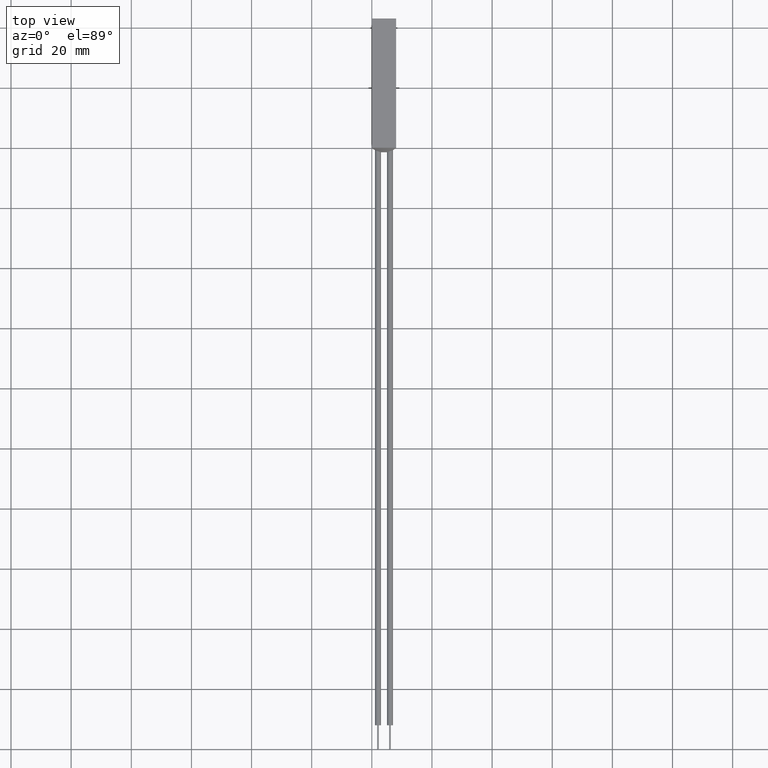
[diagram: clean part render]
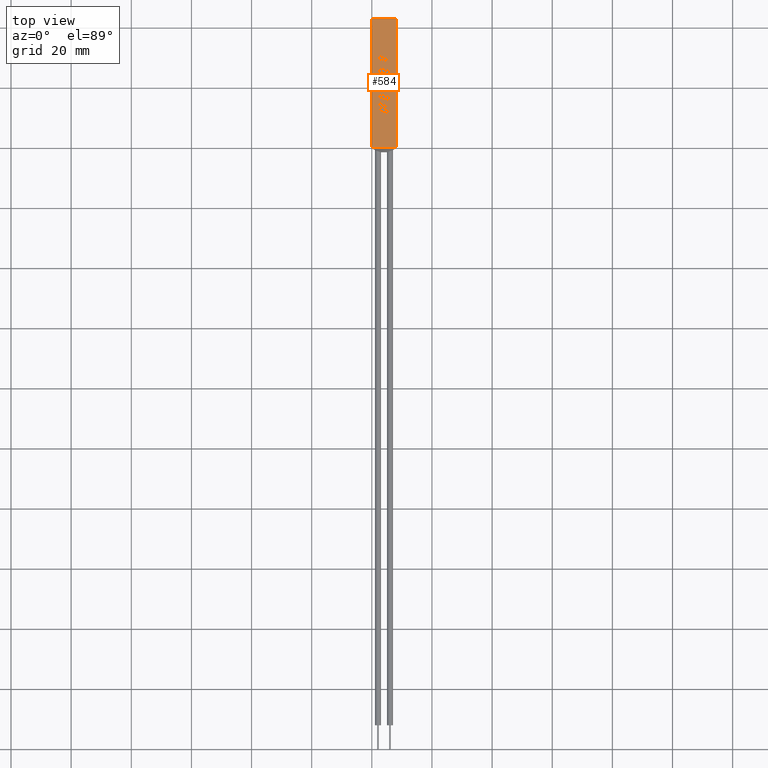
[diagram: same view with one face highlighted and labeled with its STEP entity id]
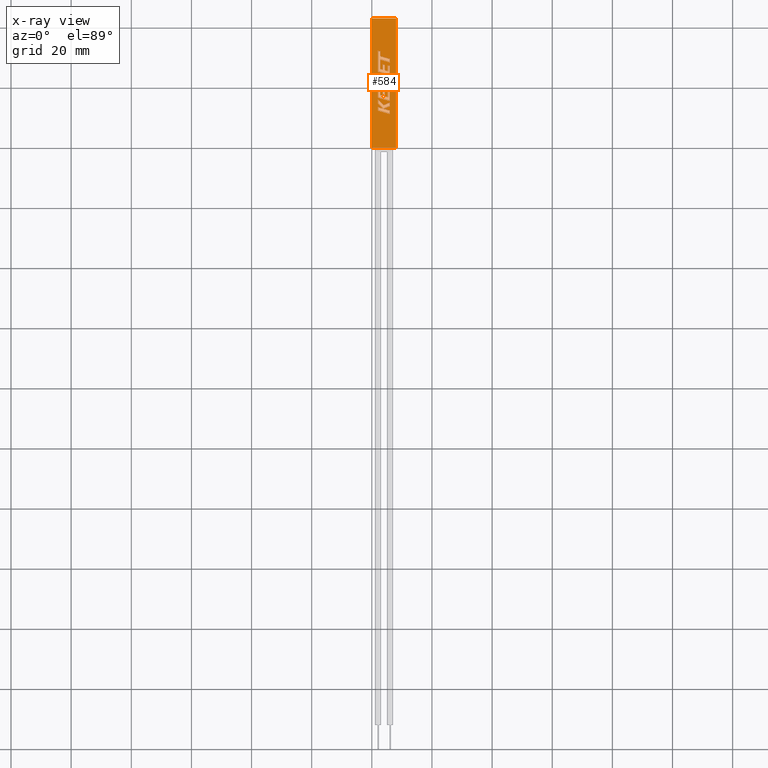
[diagram: x-ray of the same camera — body ghosted, the highlighted face saturated]
A machine part, top view. The second image highlights one B-rep face of the part: STEP entity #584.
The next image is the same camera in x-ray: the body ghosted, the highlighted face saturated — about 0% of this face is hidden behind the body in this view.
In plain terms, the highlighted planar face has unit normal (0, 0, -1).
Its self-contained STEP definition (entity closure, byte-faithful):
#4 = CARTESIAN_POINT ( 'NONE',  ( 0.0000000000000000000, 0.0000000000000000000, 8.099999999999999600 ) ) ;
#8 = VECTOR ( 'NONE', #1587, 1000.000000000000000 ) ;
#22 = CARTESIAN_POINT ( 'NONE',  ( 5.298211640257044100, 16.90319516898585000, 8.099999999999999600 ) ) ;
#31 = CARTESIAN_POINT ( 'NONE',  ( 6.065359624523209100, 13.85877490529176500, 8.099999999999999600 ) ) ;
#32 = CARTESIAN_POINT ( 'NONE',  ( 3.550727735831612700, 27.75770772029688200, 8.099999999999999600 ) ) ;
#34 = LINE ( 'NONE', #1168, #825 ) ;
#36 = CARTESIAN_POINT ( 'NONE',  ( 2.033057189502820400, 21.79422283212744900, 8.099999999999999600 ) ) ;
#38 = DIRECTION ( 'NONE',  ( 0.9610348236706637300, -0.2764273280489760700, 0.0000000000000000000 ) ) ;
#42 = VECTOR ( 'NONE', #1274, 1000.000000000000000 ) ;
#56 = LINE ( 'NONE', #2128, #2182 ) ;
#58 = ORIENTED_EDGE ( 'NONE', *, *, #77, .F. ) ;
#62 = ORIENTED_EDGE ( 'NONE', *, *, #335, .F. ) ;
#66 = EDGE_CURVE ( 'NONE', #1820, #387, #966, .T. ) ;
#67 = ORIENTED_EDGE ( 'NONE', *, *, #718, .T. ) ;
#73 = VECTOR ( 'NONE', #1568, 1000.000000000000100 ) ;
#76 = LINE ( 'NONE', #124, #991 ) ;
#77 = EDGE_CURVE ( 'NONE', #89, #2466, #1530, .T. ) ;
#80 = VECTOR ( 'NONE', #2120, 1000.000000000000000 ) ;
#81 = CARTESIAN_POINT ( 'NONE',  ( 2.033057189502820900, 12.36462026173734300, 8.099999999999999600 ) ) ;
#83 = EDGE_CURVE ( 'NONE', #1717, #1332, #843, .T. ) ;
#89 = VERTEX_POINT ( 'NONE', #2172 ) ;
#92 = ORIENTED_EDGE ( 'NONE', *, *, #1399, .F. ) ;
#99 = CARTESIAN_POINT ( 'NONE',  ( 6.065359624523210900, 27.20892166027618200, 8.099999999999999600 ) ) ;
#102 = ORIENTED_EDGE ( 'NONE', *, *, #1588, .F. ) ;
#104 = CARTESIAN_POINT ( 'NONE',  ( 3.550727735831612700, 26.02726609967319900, 8.099999999999999600 ) ) ;
#105 = CARTESIAN_POINT ( 'NONE',  ( 4.296027267031489800, 25.81459311046148700, 8.099999999999999600 ) ) ;
#106 = DIRECTION ( 'NONE',  ( -0.9610992334305247200, 0.2762033010288939500, 0.0000000000000000000 ) ) ;
#120 = DIRECTION ( 'NONE',  ( 0.0000000000000000000, 1.000000000000000000, 0.0000000000000000000 ) ) ;
#124 = CARTESIAN_POINT ( 'NONE',  ( 2.811619825730830700, 29.31919777909955000, 8.099999999999999600 ) ) ;
#142 = VECTOR ( 'NONE', #2191, 1000.000000000000000 ) ;
#143 = FACE_BOUND ( 'NONE', #1692, .T. ) ;
#145 = LINE ( 'NONE', #1252, #1681 ) ;
#146 = LINE ( 'NONE', #1882, #2363 ) ;
#156 = DIRECTION ( 'NONE',  ( 0.9610029908221278100, -0.2765379750249957200, 0.0000000000000000000 ) ) ;
#167 = CARTESIAN_POINT ( 'NONE',  ( 2.033057189502821300, 16.69588007765661100, 8.099999999999999600 ) ) ;
#169 = EDGE_CURVE ( 'NONE', #244, #89, #2358, .T. ) ;
#170 = DIRECTION ( 'NONE',  ( 0.0000000000000000000, 0.0000000000000000000, -1.000000000000000000 ) ) ;
#174 = VERTEX_POINT ( 'NONE', #32 ) ;
#175 = ORIENTED_EDGE ( 'NONE', *, *, #1051, .F. ) ;
#178 = ORIENTED_EDGE ( 'NONE', *, *, #2179, .F. ) ;
#182 = ORIENTED_EDGE ( 'NONE', *, *, #1809, .F. ) ;
#187 = VERTEX_POINT ( 'NONE', #1800 ) ;
#189 = EDGE_CURVE ( 'NONE', #576, #603, #507, .T. ) ;
#190 = VECTOR ( 'NONE', #2050, 1000.000000000000000 ) ;
#204 = ORIENTED_EDGE ( 'NONE', *, *, #670, .F. ) ;
#216 = DIRECTION ( 'NONE',  ( 0.9280290862136603100, 0.3725077383645050100, -0.0000000000000000000 ) ) ;
#217 = ORIENTED_EDGE ( 'NONE', *, *, #2245, .F. ) ;
#231 = CARTESIAN_POINT ( 'NONE',  ( 3.875928840742625300, 12.97994478920210600, 8.099999999999999600 ) ) ;
#240 = CARTESIAN_POINT ( 'NONE',  ( 6.065359624523209100, 13.85877490529176500, 8.099999999999999600 ) ) ;
#244 = VERTEX_POINT ( 'NONE', #1048 ) ;
#249 = VERTEX_POINT ( 'NONE', #2414 ) ;
#258 = DIRECTION ( 'NONE',  ( -0.9620200793798853200, 0.2729786930694760900, 0.0000000000000000000 ) ) ;
#261 = LINE ( 'NONE', #1821, #2022 ) ;
#287 = EDGE_CURVE ( 'NONE', #2225, #1281, #261, .T. ) ;
#289 = CARTESIAN_POINT ( 'NONE',  ( 5.298064512637449900, 27.42664603145166400, 8.099999999999999600 ) ) ;
#292 = LINE ( 'NONE', #630, #1737 ) ;
#295 = DIRECTION ( 'NONE',  ( -0.9610674221107088400, 0.2763139702539063600, 0.0000000000000000000 ) ) ;
#298 = VERTEX_POINT ( 'NONE', #1623 ) ;
#299 = ORIENTED_EDGE ( 'NONE', *, *, #502, .F. ) ;
#321 = DIRECTION ( 'NONE',  ( 1.448785531673494400E-016, -1.000000000000000000, 0.0000000000000000000 ) ) ;
#335 = EDGE_CURVE ( 'NONE', #1481, #1852, #1161, .T. ) ;
#353 = ORIENTED_EDGE ( 'NONE', *, *, #1736, .F. ) ;
#357 = ORIENTED_EDGE ( 'NONE', *, *, #1139, .F. ) ;
#379 = EDGE_CURVE ( 'NONE', #1969, #244, #1619, .T. ) ;
#387 = VERTEX_POINT ( 'NONE', #1683 ) ;
#404 = CARTESIAN_POINT ( 'NONE',  ( 8.099999999999999600, 43.00000000000000000, 8.099999999999999600 ) ) ;
#405 = VECTOR ( 'NONE', #106, 1000.000000000000000 ) ;
#407 = VECTOR ( 'NONE', #857, 1000.000000000000100 ) ;
#413 = CARTESIAN_POINT ( 'NONE',  ( 0.0000000000000000000, 0.0000000000000000000, 8.099999999999999600 ) ) ;
#418 = ORIENTED_EDGE ( 'NONE', *, *, #83, .F. ) ;
#421 = CARTESIAN_POINT ( 'NONE',  ( 4.296027267022982900, 18.91921151950872100, 8.099999999999999600 ) ) ;
#423 = ORIENTED_EDGE ( 'NONE', *, *, #1594, .T. ) ;
#431 = VECTOR ( 'NONE', #156, 1000.000000000000200 ) ;
#433 = EDGE_CURVE ( 'NONE', #1092, #2282, #146, .T. ) ;
#435 = VECTOR ( 'NONE', #2410, 1000.000000000000100 ) ;
#449 = EDGE_CURVE ( 'NONE', #174, #2222, #1073, .T. ) ;
#457 = CARTESIAN_POINT ( 'NONE',  ( 2.805918630066817500, 28.09333036567217700, 8.099999999999999600 ) ) ;
#462 = VECTOR ( 'NONE', #2331, 1000.000000000000000 ) ;
#463 = DIRECTION ( 'NONE',  ( -0.9615323037684399000, 0.2746918797666879600, 0.0000000000000000000 ) ) ;
#464 = EDGE_CURVE ( 'NONE', #979, #2534, #1268, .T. ) ;
#466 = CARTESIAN_POINT ( 'NONE',  ( 2.033057189502820900, 13.51275524396518600, 8.099999999999999600 ) ) ;
#476 = CARTESIAN_POINT ( 'NONE',  ( 2.800585253472232400, 19.45681587965622900, 8.099999999999999600 ) ) ;
#485 = ORIENTED_EDGE ( 'NONE', *, *, #1641, .F. ) ;
#492 = AXIS2_PLACEMENT_3D ( 'NONE', #4, #170, #2552 ) ;
#500 = VECTOR ( 'NONE', #258, 1000.000000000000100 ) ;
#502 = EDGE_CURVE ( 'NONE', #2222, #1486, #56, .T. ) ;
#503 = VECTOR ( 'NONE', #2246, 1000.000000000000100 ) ;
#506 = VECTOR ( 'NONE', #915, 1000.000000000000100 ) ;
#507 = LINE ( 'NONE', #1019, #407 ) ;
#520 = VERTEX_POINT ( 'NONE', #1136 ) ;
#521 = EDGE_CURVE ( 'NONE', #603, #820, #2123, .T. ) ;
#527 = CARTESIAN_POINT ( 'NONE',  ( 6.065359624523210900, 22.65245252199492800, 8.099999999999999600 ) ) ;
#536 = EDGE_CURVE ( 'NONE', #1336, #2442, #2497, .T. ) ;
#544 = CARTESIAN_POINT ( 'NONE',  ( 3.550727735831612700, 27.75770772029688200, 8.099999999999999600 ) ) ;
#549 = DIRECTION ( 'NONE',  ( 0.0000000000000000000, -1.000000000000000000, 0.0000000000000000000 ) ) ;
#553 = EDGE_CURVE ( 'NONE', #1630, #638, #2247, .T. ) ;
#556 = CARTESIAN_POINT ( 'NONE',  ( 2.033057189502821300, 16.69588007765661100, 8.099999999999999600 ) ) ;
#564 = VECTOR ( 'NONE', #846, 1000.000000000000000 ) ;
#571 = VECTOR ( 'NONE', #1902, 1000.000000000000000 ) ;
#576 = VERTEX_POINT ( 'NONE', #1390 ) ;
#584 = ADVANCED_FACE ( 'NONE', ( #2119, #1132, #1582, #143 ), #2144, .F. ) ;
#595 = DIRECTION ( 'NONE',  ( 0.0000000000000000000, 1.000000000000000000, 0.0000000000000000000 ) ) ;
#603 = VERTEX_POINT ( 'NONE', #759 ) ;
#608 = VERTEX_POINT ( 'NONE', #950 ) ;
#614 = CARTESIAN_POINT ( 'NONE',  ( 5.298211640257044100, 16.90319516898584600, 8.099999999999999600 ) ) ;
#626 = VECTOR ( 'NONE', #2476, 1000.000000000000000 ) ;
#630 = CARTESIAN_POINT ( 'NONE',  ( 0.0000000000000000000, 0.0000000000000000000, 8.099999999999999600 ) ) ;
#634 = ORIENTED_EDGE ( 'NONE', *, *, #1629, .F. ) ;
#636 = ORIENTED_EDGE ( 'NONE', *, *, #913, .F. ) ;
#638 = VERTEX_POINT ( 'NONE', #2339 ) ;
#641 = VERTEX_POINT ( 'NONE', #1752 ) ;
#643 = LINE ( 'NONE', #421, #1514 ) ;
#649 = VECTOR ( 'NONE', #595, 1000.000000000000000 ) ;
#663 = EDGE_CURVE ( 'NONE', #2534, #641, #1867, .T. ) ;
#670 = EDGE_CURVE ( 'NONE', #2466, #2510, #808, .T. ) ;
#690 = DIRECTION ( 'NONE',  ( -0.0000000000000000000, 1.000000000000000000, -0.0000000000000000000 ) ) ;
#715 = CARTESIAN_POINT ( 'NONE',  ( 2.811746728228875300, 32.06607818268030000, 8.099999999999999600 ) ) ;
#718 = EDGE_CURVE ( 'NONE', #1452, #1336, #292, .T. ) ;
#720 = VECTOR ( 'NONE', #295, 1000.000000000000100 ) ;
#722 = CARTESIAN_POINT ( 'NONE',  ( 6.065359624523210900, 21.78408072827323800, 8.099999999999999600 ) ) ;
#726 = CARTESIAN_POINT ( 'NONE',  ( 2.800720120471082500, 26.24550541755443300, 8.099999999999999600 ) ) ;
#730 = DIRECTION ( 'NONE',  ( -0.9601763114346043600, 0.2793947940814888200, 0.0000000000000000000 ) ) ;
#731 = ORIENTED_EDGE ( 'NONE', *, *, #1342, .F. ) ;
#742 = CARTESIAN_POINT ( 'NONE',  ( 4.296027267031489800, 27.54478951836840000, 8.099999999999999600 ) ) ;
#744 = EDGE_CURVE ( 'NONE', #1309, #2402, #2428, .T. ) ;
#745 = CARTESIAN_POINT ( 'NONE',  ( 8.099999999999999600, 0.0000000000000000000, 8.099999999999999600 ) ) ;
#759 = CARTESIAN_POINT ( 'NONE',  ( 6.065359624523210900, 20.70910496007882500, 8.099999999999999600 ) ) ;
#763 = VECTOR ( 'NONE', #2373, 1000.000000000000200 ) ;
#765 = LINE ( 'NONE', #2453, #1570 ) ;
#774 = EDGE_CURVE ( 'NONE', #298, #979, #2527, .T. ) ;
#781 = VECTOR ( 'NONE', #946, 1000.000000000000100 ) ;
#795 = ORIENTED_EDGE ( 'NONE', *, *, #1345, .F. ) ;
#800 = VECTOR ( 'NONE', #1293, 1000.000000000000200 ) ;
#808 = LINE ( 'NONE', #240, #1928 ) ;
#809 = CARTESIAN_POINT ( 'NONE',  ( 2.800585253472232400, 17.61965768471606400, 8.099999999999999600 ) ) ;
#818 = DIRECTION ( 'NONE',  ( 0.004650693823643930000, 0.9999891854650022600, 0.0000000000000000000 ) ) ;
#820 = VERTEX_POINT ( 'NONE', #1066 ) ;
#825 = VECTOR ( 'NONE', #1771, 1000.000000000000100 ) ;
#835 = DIRECTION ( 'NONE',  ( 0.0000000000000000000, 1.000000000000000000, 0.0000000000000000000 ) ) ;
#843 = LINE ( 'NONE', #977, #1298 ) ;
#845 = DIRECTION ( 'NONE',  ( 0.0000000000000000000, 1.000000000000000000, 0.0000000000000000000 ) ) ;
#846 = DIRECTION ( 'NONE',  ( 0.9610853065513850200, -0.2762517575166362800, 0.0000000000000000000 ) ) ;
#857 = DIRECTION ( 'NONE',  ( 0.9984327301130273600, -0.05596501978063306300, 0.0000000000000000000 ) ) ;
#861 = LINE ( 'NONE', #1388, #8 ) ;
#875 = VERTEX_POINT ( 'NONE', #457 ) ;
#878 = EDGE_CURVE ( 'NONE', #1842, #1593, #145, .T. ) ;
#894 = VERTEX_POINT ( 'NONE', #1054 ) ;
#913 = EDGE_CURVE ( 'NONE', #894, #1961, #2523, .T. ) ;
#915 = DIRECTION ( 'NONE',  ( 7.938847108747661100E-005, 0.9999999968487352000, 0.0000000000000000000 ) ) ;
#918 = DIRECTION ( 'NONE',  ( -0.8843386665637784600, 0.4668459304954882300, 0.0000000000000000000 ) ) ;
#920 = DIRECTION ( 'NONE',  ( 0.0000000000000000000, 1.000000000000000000, 0.0000000000000000000 ) ) ;
#934 = VECTOR ( 'NONE', #1577, 1000.000000000000100 ) ;
#938 = ORIENTED_EDGE ( 'NONE', *, *, #2386, .F. ) ;
#939 = CARTESIAN_POINT ( 'NONE',  ( 2.033057189502820900, 14.73354675415738200, 8.099999999999999600 ) ) ;
#940 = ORIENTED_EDGE ( 'NONE', *, *, #553, .F. ) ;
#946 = DIRECTION ( 'NONE',  ( -0.9612934544747658800, 0.2755265765474743100, -0.0000000000000000000 ) ) ;
#949 = LINE ( 'NONE', #1016, #2163 ) ;
#950 = CARTESIAN_POINT ( 'NONE',  ( 2.811619825730831600, 29.31919777909955000, 8.099999999999999600 ) ) ;
#953 = CARTESIAN_POINT ( 'NONE',  ( 3.875928840742624000, 12.97994478920210600, 8.099999999999999600 ) ) ;
#957 = EDGE_CURVE ( 'NONE', #1266, #2134, #2244, .T. ) ;
#958 = LINE ( 'NONE', #1225, #1402 ) ;
#966 = LINE ( 'NONE', #1551, #2309 ) ;
#970 = ORIENTED_EDGE ( 'NONE', *, *, #1483, .F. ) ;
#977 = CARTESIAN_POINT ( 'NONE',  ( 6.065359624523210900, 22.65245252199492800, 8.099999999999999600 ) ) ;
#978 = VECTOR ( 'NONE', #2216, 1000.000000000000000 ) ;
#979 = VERTEX_POINT ( 'NONE', #1879 ) ;
#981 = CARTESIAN_POINT ( 'NONE',  ( 2.033057189502820900, 12.36462026173734300, 8.099999999999999600 ) ) ;
#982 = DIRECTION ( 'NONE',  ( 0.002813301675981434700, 0.9999960426590096500, 0.0000000000000000000 ) ) ;
#983 = VECTOR ( 'NONE', #463, 1000.000000000000200 ) ;
#989 = LINE ( 'NONE', #2536, #1430 ) ;
#990 = CARTESIAN_POINT ( 'NONE',  ( 6.065359624523209100, 12.35240866520725300, 8.099999999999999600 ) ) ;
#991 = VECTOR ( 'NONE', #1114, 999.9999999999998900 ) ;
#995 = EDGE_CURVE ( 'NONE', #2134, #2185, #1133, .T. ) ;
#997 = LINE ( 'NONE', #614, #142 ) ;
#1002 = VECTOR ( 'NONE', #2200, 1000.000000000000000 ) ;
#1007 = ORIENTED_EDGE ( 'NONE', *, *, #774, .F. ) ;
#1015 = CARTESIAN_POINT ( 'NONE',  ( 2.033057189502820000, 23.06789916026803400, 8.099999999999999600 ) ) ;
#1016 = CARTESIAN_POINT ( 'NONE',  ( 2.033057189502820000, 25.32223049979639700, 8.099999999999999600 ) ) ;
#1019 = CARTESIAN_POINT ( 'NONE',  ( 2.475506754911654700, 20.91032651542049300, 8.099999999999999600 ) ) ;
#1024 = VERTEX_POINT ( 'NONE', #1508 ) ;
#1027 = LINE ( 'NONE', #99, #500 ) ;
#1032 = VECTOR ( 'NONE', #982, 1000.000000000000100 ) ;
#1040 = ORIENTED_EDGE ( 'NONE', *, *, #2391, .F. ) ;
#1041 = CARTESIAN_POINT ( 'NONE',  ( 2.033057189502820900, 13.51275524396518600, 8.099999999999999600 ) ) ;
#1048 = CARTESIAN_POINT ( 'NONE',  ( 6.065359624523208200, 11.20580626569658200, 8.099999999999999600 ) ) ;
#1051 = EDGE_CURVE ( 'NONE', #1395, #1481, #2148, .T. ) ;
#1054 = CARTESIAN_POINT ( 'NONE',  ( 2.033057189502820900, 14.73354675415738100, 8.099999999999999600 ) ) ;
#1056 = CARTESIAN_POINT ( 'NONE',  ( 3.875928840742591600, 14.17813994754817800, 8.099999999999999600 ) ) ;
#1063 = CARTESIAN_POINT ( 'NONE',  ( 2.033057189502818700, 32.28986009155261900, 8.099999999999999600 ) ) ;
#1066 = CARTESIAN_POINT ( 'NONE',  ( 6.065359624523210900, 21.78408072827323800, 8.099999999999999600 ) ) ;
#1073 = LINE ( 'NONE', #544, #571 ) ;
#1076 = ORIENTED_EDGE ( 'NONE', *, *, #995, .F. ) ;
#1089 = EDGE_CURVE ( 'NONE', #1486, #875, #2094, .T. ) ;
#1092 = VERTEX_POINT ( 'NONE', #2518 ) ;
#1099 = LINE ( 'NONE', #1264, #42 ) ;
#1106 = VECTOR ( 'NONE', #1435, 1000.000000000000000 ) ;
#1114 = DIRECTION ( 'NONE',  ( 0.9610664548999052800, -0.2763173343569465000, 0.0000000000000000000 ) ) ;
#1125 = DIRECTION ( 'NONE',  ( -0.6995643972270443300, 0.7145695586381790600, -0.0000000000000000000 ) ) ;
#1128 = CARTESIAN_POINT ( 'NONE',  ( 4.913785857811077100, 21.63915201084902800, 8.099999999999999600 ) ) ;
#1132 = FACE_OUTER_BOUND ( 'NONE', #1881, .T. ) ;
#1133 = LINE ( 'NONE', #715, #405 ) ;
#1136 = CARTESIAN_POINT ( 'NONE',  ( 5.298064512637449900, 25.52852795513538100, 8.099999999999999600 ) ) ;
#1139 = EDGE_CURVE ( 'NONE', #2402, #2225, #997, .T. ) ;
#1151 = ORIENTED_EDGE ( 'NONE', *, *, #1972, .F. ) ;
#1153 = LINE ( 'NONE', #722, #2516 ) ;
#1154 = ORIENTED_EDGE ( 'NONE', *, *, #2533, .T. ) ;
#1159 = VECTOR ( 'NONE', #2257, 1000.000000000000100 ) ;
#1161 = LINE ( 'NONE', #1848, #626 ) ;
#1167 = VERTEX_POINT ( 'NONE', #1407 ) ;
#1168 = CARTESIAN_POINT ( 'NONE',  ( 6.065359624523210900, 19.87957486068575400, 8.099999999999999600 ) ) ;
#1187 = VECTOR ( 'NONE', #1460, 1000.000000000000100 ) ;
#1197 = DIRECTION ( 'NONE',  ( 0.0000000000000000000, 1.000000000000000000, 0.0000000000000000000 ) ) ;
#1206 = CARTESIAN_POINT ( 'NONE',  ( 2.800585253472232400, 17.61965768471606400, 8.099999999999999600 ) ) ;
#1214 = DIRECTION ( 'NONE',  ( 0.0000000000000000000, -1.000000000000000000, 0.0000000000000000000 ) ) ;
#1218 = LINE ( 'NONE', #167, #431 ) ;
#1221 = LINE ( 'NONE', #1886, #1924 ) ;
#1225 = CARTESIAN_POINT ( 'NONE',  ( 2.805918630066817500, 28.09333036567217700, 8.099999999999999600 ) ) ;
#1239 = EDGE_CURVE ( 'NONE', #1961, #2102, #1550, .T. ) ;
#1248 = ORIENTED_EDGE ( 'NONE', *, *, #1089, .F. ) ;
#1252 = CARTESIAN_POINT ( 'NONE',  ( 6.065359624523210900, 28.38371126481157000, 8.099999999999999600 ) ) ;
#1257 = VECTOR ( 'NONE', #2281, 1000.000000000000100 ) ;
#1259 = CARTESIAN_POINT ( 'NONE',  ( 2.811619825740878700, 30.46757797404221400, 8.099999999999999600 ) ) ;
#1262 = DIRECTION ( 'NONE',  ( 0.0000000000000000000, -1.000000000000000000, 0.0000000000000000000 ) ) ;
#1264 = CARTESIAN_POINT ( 'NONE',  ( 0.0000000000000000000, 43.00000000000000000, 8.099999999999999600 ) ) ;
#1266 = VERTEX_POINT ( 'NONE', #1259 ) ;
#1268 = LINE ( 'NONE', #1919, #1654 ) ;
#1270 = CARTESIAN_POINT ( 'NONE',  ( 4.296027267022982900, 17.18874537761344400, 8.099999999999999600 ) ) ;
#1274 = DIRECTION ( 'NONE',  ( -1.000000000000000000, -0.0000000000000000000, -0.0000000000000000000 ) ) ;
#1281 = VERTEX_POINT ( 'NONE', #2461 ) ;
#1293 = DIRECTION ( 'NONE',  ( -0.9610876102172822800, 0.2762437428917317000, 0.0000000000000000000 ) ) ;
#1297 = EDGE_CURVE ( 'NONE', #641, #249, #2302, .T. ) ;
#1298 = VECTOR ( 'NONE', #1197, 1000.000000000000000 ) ;
#1299 = CARTESIAN_POINT ( 'NONE',  ( 6.065359624523208200, 11.20580626569658200, 8.099999999999999600 ) ) ;
#1302 = ORIENTED_EDGE ( 'NONE', *, *, #1787, .F. ) ;
#1309 = VERTEX_POINT ( 'NONE', #1467 ) ;
#1332 = VERTEX_POINT ( 'NONE', #1506 ) ;
#1333 = DIRECTION ( 'NONE',  ( 0.0000000000000000000, 1.000000000000000000, 0.0000000000000000000 ) ) ;
#1336 = VERTEX_POINT ( 'NONE', #1484 ) ;
#1342 = EDGE_CURVE ( 'NONE', #2484, #1717, #1614, .T. ) ;
#1345 = EDGE_CURVE ( 'NONE', #1332, #1820, #2550, .T. ) ;
#1354 = CARTESIAN_POINT ( 'NONE',  ( 2.033057189502820000, 24.83643958346366500, 8.099999999999999600 ) ) ;
#1365 = ORIENTED_EDGE ( 'NONE', *, *, #287, .F. ) ;
#1367 = ORIENTED_EDGE ( 'NONE', *, *, #464, .F. ) ;
#1373 = EDGE_CURVE ( 'NONE', #187, #2338, #2487, .T. ) ;
#1388 = CARTESIAN_POINT ( 'NONE',  ( 2.033057189502820900, 19.67480998482584600, 8.099999999999999600 ) ) ;
#1390 = CARTESIAN_POINT ( 'NONE',  ( 2.475506754911654700, 20.91032651542049300, 8.099999999999999600 ) ) ;
#1395 = VERTEX_POINT ( 'NONE', #1128 ) ;
#1399 = EDGE_CURVE ( 'NONE', #2185, #1024, #1221, .T. ) ;
#1401 = CARTESIAN_POINT ( 'NONE',  ( 3.875928840742594700, 14.17813994754817800, 8.099999999999999600 ) ) ;
#1402 = VECTOR ( 'NONE', #818, 1000.000000000000200 ) ;
#1407 = CARTESIAN_POINT ( 'NONE',  ( 6.065359624523210900, 27.20892166027618200, 8.099999999999999600 ) ) ;
#1418 = ORIENTED_EDGE ( 'NONE', *, *, #2408, .F. ) ;
#1420 = CARTESIAN_POINT ( 'NONE',  ( 2.800720120471082500, 26.24550541755443300, 8.099999999999999600 ) ) ;
#1430 = VECTOR ( 'NONE', #549, 1000.000000000000000 ) ;
#1435 = DIRECTION ( 'NONE',  ( 0.0000000000000000000, 1.000000000000000000, 0.0000000000000000000 ) ) ;
#1452 = VERTEX_POINT ( 'NONE', #413 ) ;
#1460 = DIRECTION ( 'NONE',  ( -0.9612861490927325800, 0.2755520632520553900, -0.0000000000000000000 ) ) ;
#1463 = CARTESIAN_POINT ( 'NONE',  ( 2.033057189502820400, 20.07700788279051800, 8.099999999999999600 ) ) ;
#1467 = CARTESIAN_POINT ( 'NONE',  ( 5.298211640257044100, 19.13848073079321900, 8.099999999999999600 ) ) ;
#1468 = EDGE_CURVE ( 'NONE', #387, #1395, #1676, .T. ) ;
#1477 = CARTESIAN_POINT ( 'NONE',  ( 3.752586844215083600, 13.01985316207598800, 8.099999999999999600 ) ) ;
#1478 = CARTESIAN_POINT ( 'NONE',  ( 6.065359624523210900, 29.53236119374451000, 8.099999999999999600 ) ) ;
#1481 = VERTEX_POINT ( 'NONE', #36 ) ;
#1482 = CARTESIAN_POINT ( 'NONE',  ( 4.296027267031489800, 27.54478951836840000, 8.099999999999999600 ) ) ;
#1483 = EDGE_CURVE ( 'NONE', #875, #608, #958, .T. ) ;
#1484 = CARTESIAN_POINT ( 'NONE',  ( 8.099999999999999600, 0.0000000000000000000, 8.099999999999999600 ) ) ;
#1486 = VERTEX_POINT ( 'NONE', #1420 ) ;
#1492 = LINE ( 'NONE', #1463, #564 ) ;
#1495 = CARTESIAN_POINT ( 'NONE',  ( 6.065359624523210900, 23.67712290135410000, 8.099999999999999600 ) ) ;
#1506 = CARTESIAN_POINT ( 'NONE',  ( 6.065359624523210900, 23.67712290135410300, 8.099999999999999600 ) ) ;
#1508 = CARTESIAN_POINT ( 'NONE',  ( 2.033057189502819100, 25.32223049979639400, 8.099999999999999600 ) ) ;
#1511 = ORIENTED_EDGE ( 'NONE', *, *, #1989, .F. ) ;
#1514 = VECTOR ( 'NONE', #1808, 1000.000000000000000 ) ;
#1517 = LINE ( 'NONE', #1482, #983 ) ;
#1521 = ORIENTED_EDGE ( 'NONE', *, *, #744, .F. ) ;
#1523 = CARTESIAN_POINT ( 'NONE',  ( 6.065359624523210900, 20.70910496007882500, 8.099999999999999600 ) ) ;
#1530 = LINE ( 'NONE', #953, #781 ) ;
#1532 = VERTEX_POINT ( 'NONE', #289 ) ;
#1548 = LINE ( 'NONE', #1478, #800 ) ;
#1550 = LINE ( 'NONE', #466, #1187 ) ;
#1551 = CARTESIAN_POINT ( 'NONE',  ( 2.033057189502820000, 24.83643958346366500, 8.099999999999999600 ) ) ;
#1559 = EDGE_CURVE ( 'NONE', #2102, #1969, #2300, .T. ) ;
#1567 = ORIENTED_EDGE ( 'NONE', *, *, #66, .F. ) ;
#1568 = DIRECTION ( 'NONE',  ( -0.9615825319869246700, 0.2745159998572304100, 0.0000000000000000000 ) ) ;
#1570 = VECTOR ( 'NONE', #690, 1000.000000000000000 ) ;
#1577 = DIRECTION ( 'NONE',  ( -0.9985542843760947300, 0.05375259206908300500, 0.0000000000000000000 ) ) ;
#1582 = FACE_BOUND ( 'NONE', #1812, .T. ) ;
#1586 = VECTOR ( 'NONE', #1125, 1000.000000000000100 ) ;
#1587 = DIRECTION ( 'NONE',  ( 1.455827704943593700E-016, -1.000000000000000000, 0.0000000000000000000 ) ) ;
#1588 = EDGE_CURVE ( 'NONE', #1852, #1309, #1492, .T. ) ;
#1591 = DIRECTION ( 'NONE',  ( 1.000000000000000000, 0.0000000000000000000, 0.0000000000000000000 ) ) ;
#1592 = ORIENTED_EDGE ( 'NONE', *, *, #433, .F. ) ;
#1593 = VERTEX_POINT ( 'NONE', #1851 ) ;
#1594 = EDGE_CURVE ( 'NONE', #2442, #2043, #1099, .T. ) ;
#1609 = EDGE_CURVE ( 'NONE', #1593, #1266, #1548, .T. ) ;
#1614 = LINE ( 'NONE', #2289, #1257 ) ;
#1619 = LINE ( 'NONE', #1299, #2493 ) ;
#1623 = CARTESIAN_POINT ( 'NONE',  ( 3.550592868830611400, 19.13212972144191300, 8.099999999999999600 ) ) ;
#1627 = ORIENTED_EDGE ( 'NONE', *, *, #169, .F. ) ;
#1629 = EDGE_CURVE ( 'NONE', #1167, #1532, #1027, .T. ) ;
#1630 = VERTEX_POINT ( 'NONE', #1056 ) ;
#1641 = EDGE_CURVE ( 'NONE', #608, #1842, #76, .T. ) ;
#1654 = VECTOR ( 'NONE', #1925, 1000.000000000000100 ) ;
#1676 = LINE ( 'NONE', #1015, #435 ) ;
#1681 = VECTOR ( 'NONE', #845, 1000.000000000000000 ) ;
#1683 = CARTESIAN_POINT ( 'NONE',  ( 2.033057189502819100, 23.06789916026804100, 8.099999999999999600 ) ) ;
#1689 = CARTESIAN_POINT ( 'NONE',  ( 2.811619825740878700, 30.46757797404221400, 8.099999999999999600 ) ) ;
#1692 = EDGE_LOOP ( 'NONE', ( #1248, #299, #2350, #217, #2562, #2127, #182, #634, #1151, #1816, #92, #1076, #2037, #1756, #2344, #485, #970 ) ) ;
#1704 = LINE ( 'NONE', #1778, #649 ) ;
#1717 = VERTEX_POINT ( 'NONE', #527 ) ;
#1720 = ORIENTED_EDGE ( 'NONE', *, *, #1559, .F. ) ;
#1736 = EDGE_CURVE ( 'NONE', #820, #2484, #1153, .T. ) ;
#1737 = VECTOR ( 'NONE', #1591, 1000.000000000000000 ) ;
#1739 = CARTESIAN_POINT ( 'NONE',  ( 6.065359624523207300, 15.08567221213021100, 8.099999999999999600 ) ) ;
#1752 = CARTESIAN_POINT ( 'NONE',  ( 2.800585253472232400, 19.45681587965622600, 8.099999999999999600 ) ) ;
#1756 = ORIENTED_EDGE ( 'NONE', *, *, #1609, .F. ) ;
#1766 = EDGE_CURVE ( 'NONE', #638, #894, #1983, .T. ) ;
#1771 = DIRECTION ( 'NONE',  ( -0.9611638845409048400, 0.2759782365590409700, 0.0000000000000000000 ) ) ;
#1776 = ORIENTED_EDGE ( 'NONE', *, *, #189, .F. ) ;
#1778 = CARTESIAN_POINT ( 'NONE',  ( 6.065359624523210900, 24.16239886774302900, 8.099999999999999600 ) ) ;
#1787 = EDGE_CURVE ( 'NONE', #1846, #1092, #1218, .T. ) ;
#1800 = CARTESIAN_POINT ( 'NONE',  ( 4.296027267031489800, 25.81459311046148700, 8.099999999999999600 ) ) ;
#1806 = CARTESIAN_POINT ( 'NONE',  ( 5.298211640257044100, 19.13848073079321900, 8.099999999999999600 ) ) ;
#1808 = DIRECTION ( 'NONE',  ( -0.9615454294334508900, 0.2746459304916798500, 0.0000000000000000000 ) ) ;
#1809 = EDGE_CURVE ( 'NONE', #1532, #520, #989, .T. ) ;
#1812 = EDGE_LOOP ( 'NONE', ( #2286, #1720, #1813, #636, #2319, #940, #1040, #178, #204, #58, #1627 ) ) ;
#1813 = ORIENTED_EDGE ( 'NONE', *, *, #1239, .F. ) ;
#1815 = VERTEX_POINT ( 'NONE', #1739 ) ;
#1816 = ORIENTED_EDGE ( 'NONE', *, *, #2528, .F. ) ;
#1820 = VERTEX_POINT ( 'NONE', #1354 ) ;
#1821 = CARTESIAN_POINT ( 'NONE',  ( 4.296027267022982900, 17.18874537761344400, 8.099999999999999600 ) ) ;
#1836 = VECTOR ( 'NONE', #1333, 1000.000000000000000 ) ;
#1842 = VERTEX_POINT ( 'NONE', #2149 ) ;
#1846 = VERTEX_POINT ( 'NONE', #556 ) ;
#1848 = CARTESIAN_POINT ( 'NONE',  ( 2.033057189502820400, 21.79422283212744900, 8.099999999999999600 ) ) ;
#1851 = CARTESIAN_POINT ( 'NONE',  ( 6.065359624523210000, 29.53236119374451400, 8.099999999999999600 ) ) ;
#1852 = VERTEX_POINT ( 'NONE', #1935 ) ;
#1853 = LINE ( 'NONE', #2549, #73 ) ;
#1854 = DIRECTION ( 'NONE',  ( 0.9610992334315871000, -0.2762033010251969100, -0.0000000000000000000 ) ) ;
#1855 = EDGE_CURVE ( 'NONE', #520, #187, #1853, .T. ) ;
#1867 = LINE ( 'NONE', #1206, #1106 ) ;
#1875 = ORIENTED_EDGE ( 'NONE', *, *, #663, .F. ) ;
#1879 = CARTESIAN_POINT ( 'NONE',  ( 3.550592868830611400, 17.40141836683008200, 8.099999999999999600 ) ) ;
#1881 = EDGE_LOOP ( 'NONE', ( #1154, #67, #2152, #423 ) ) ;
#1882 = CARTESIAN_POINT ( 'NONE',  ( 6.065359624523210900, 19.16183723884537900, 8.099999999999999600 ) ) ;
#1886 = CARTESIAN_POINT ( 'NONE',  ( 2.033057189502819600, 28.31564021788804900, 8.099999999999999600 ) ) ;
#1902 = DIRECTION ( 'NONE',  ( 0.0000000000000000000, -1.000000000000000000, 0.0000000000000000000 ) ) ;
#1903 = VECTOR ( 'NONE', #1214, 1000.000000000000000 ) ;
#1919 = CARTESIAN_POINT ( 'NONE',  ( 3.550592868830611400, 17.40141836683007900, 8.099999999999999600 ) ) ;
#1922 = CARTESIAN_POINT ( 'NONE',  ( 4.913785857811078000, 21.63915201084902800, 8.099999999999999600 ) ) ;
#1924 = VECTOR ( 'NONE', #321, 1000.000000000000000 ) ;
#1925 = DIRECTION ( 'NONE',  ( -0.9601763114327569500, 0.2793947940878375700, 0.0000000000000000000 ) ) ;
#1928 = VECTOR ( 'NONE', #216, 1000.000000000000200 ) ;
#1935 = CARTESIAN_POINT ( 'NONE',  ( 2.033057189502820000, 20.07700788279051800, 8.099999999999999600 ) ) ;
#1949 = DIRECTION ( 'NONE',  ( 0.0000000000000000000, -1.000000000000000000, 0.0000000000000000000 ) ) ;
#1961 = VERTEX_POINT ( 'NONE', #2174 ) ;
#1969 = VERTEX_POINT ( 'NONE', #981 ) ;
#1972 = EDGE_CURVE ( 'NONE', #2062, #1167, #1704, .T. ) ;
#1977 = ORIENTED_EDGE ( 'NONE', *, *, #1297, .F. ) ;
#1983 = LINE ( 'NONE', #939, #462 ) ;
#1989 = EDGE_CURVE ( 'NONE', #249, #1846, #861, .T. ) ;
#1992 = CARTESIAN_POINT ( 'NONE',  ( 0.0000000000000000000, 0.0000000000000000000, 8.099999999999999600 ) ) ;
#2009 = LINE ( 'NONE', #1992, #978 ) ;
#2022 = VECTOR ( 'NONE', #835, 1000.000000000000000 ) ;
#2037 = ORIENTED_EDGE ( 'NONE', *, *, #957, .F. ) ;
#2043 = VERTEX_POINT ( 'NONE', #2436 ) ;
#2049 = CARTESIAN_POINT ( 'NONE',  ( 3.550592868830611400, 19.13212972144191300, 8.099999999999999600 ) ) ;
#2050 = DIRECTION ( 'NONE',  ( -0.0000000000000000000, -1.000000000000000000, -0.0000000000000000000 ) ) ;
#2062 = VERTEX_POINT ( 'NONE', #2405 ) ;
#2094 = LINE ( 'NONE', #726, #1032 ) ;
#2102 = VERTEX_POINT ( 'NONE', #1041 ) ;
#2119 = FACE_BOUND ( 'NONE', #2383, .T. ) ;
#2120 = DIRECTION ( 'NONE',  ( 0.0000000000000000000, 1.000000000000000000, 0.0000000000000000000 ) ) ;
#2123 = LINE ( 'NONE', #1523, #80 ) ;
#2127 = ORIENTED_EDGE ( 'NONE', *, *, #1855, .F. ) ;
#2128 = CARTESIAN_POINT ( 'NONE',  ( 3.550727735831612700, 26.02726609967320600, 8.099999999999999600 ) ) ;
#2134 = VERTEX_POINT ( 'NONE', #2203 ) ;
#2144 = PLANE ( 'NONE',  #492 ) ;
#2148 = LINE ( 'NONE', #1922, #934 ) ;
#2149 = CARTESIAN_POINT ( 'NONE',  ( 6.065359624523210900, 28.38371126481157000, 8.099999999999999600 ) ) ;
#2152 = ORIENTED_EDGE ( 'NONE', *, *, #536, .T. ) ;
#2163 = VECTOR ( 'NONE', #38, 1000.000000000000000 ) ;
#2172 = CARTESIAN_POINT ( 'NONE',  ( 6.065359624523208200, 12.35240866520725300, 8.099999999999999600 ) ) ;
#2173 = VECTOR ( 'NONE', #120, 1000.000000000000000 ) ;
#2174 = CARTESIAN_POINT ( 'NONE',  ( 3.752586844215083600, 13.01985316207598800, 8.099999999999999600 ) ) ;
#2179 = EDGE_CURVE ( 'NONE', #2510, #1815, #765, .T. ) ;
#2182 = VECTOR ( 'NONE', #730, 1000.000000000000100 ) ;
#2185 = VERTEX_POINT ( 'NONE', #1063 ) ;
#2191 = DIRECTION ( 'NONE',  ( -0.9617234872620624700, 0.2740217765953969500, 0.0000000000000000000 ) ) ;
#2200 = DIRECTION ( 'NONE',  ( 7.564625177468340900E-016, 1.000000000000000000, -0.0000000000000000000 ) ) ;
#2203 = CARTESIAN_POINT ( 'NONE',  ( 2.811746728228875300, 32.06607818268030000, 8.099999999999999600 ) ) ;
#2216 = DIRECTION ( 'NONE',  ( -0.0000000000000000000, -1.000000000000000000, -0.0000000000000000000 ) ) ;
#2222 = VERTEX_POINT ( 'NONE', #104 ) ;
#2225 = VERTEX_POINT ( 'NONE', #1270 ) ;
#2230 = LINE ( 'NONE', #1401, #763 ) ;
#2244 = LINE ( 'NONE', #1689, #506 ) ;
#2245 = EDGE_CURVE ( 'NONE', #2338, #174, #1517, .T. ) ;
#2246 = DIRECTION ( 'NONE',  ( -0.9619530280415498100, 0.2732148821746232000, 0.0000000000000000000 ) ) ;
#2247 = LINE ( 'NONE', #2326, #1586 ) ;
#2249 = ORIENTED_EDGE ( 'NONE', *, *, #1468, .F. ) ;
#2257 = DIRECTION ( 'NONE',  ( 0.7083077534944014500, -0.7059037656364459700, -0.0000000000000000000 ) ) ;
#2281 = DIRECTION ( 'NONE',  ( 0.9611542233438806800, -0.2760118818968155300, 0.0000000000000000000 ) ) ;
#2282 = VERTEX_POINT ( 'NONE', #2555 ) ;
#2286 = ORIENTED_EDGE ( 'NONE', *, *, #379, .F. ) ;
#2289 = CARTESIAN_POINT ( 'NONE',  ( 2.458219258391023400, 23.68830460123601600, 8.099999999999999600 ) ) ;
#2300 = LINE ( 'NONE', #81, #190 ) ;
#2302 = LINE ( 'NONE', #476, #503 ) ;
#2309 = VECTOR ( 'NONE', #1949, 1000.000000000000000 ) ;
#2319 = ORIENTED_EDGE ( 'NONE', *, *, #1766, .F. ) ;
#2326 = CARTESIAN_POINT ( 'NONE',  ( 2.033057189502820900, 16.06053989196077200, 8.099999999999999600 ) ) ;
#2331 = DIRECTION ( 'NONE',  ( -0.0000000000000000000, -1.000000000000000000, -0.0000000000000000000 ) ) ;
#2338 = VERTEX_POINT ( 'NONE', #742 ) ;
#2339 = CARTESIAN_POINT ( 'NONE',  ( 2.033057189502820900, 16.06053989196077200, 8.099999999999999600 ) ) ;
#2344 = ORIENTED_EDGE ( 'NONE', *, *, #878, .F. ) ;
#2350 = ORIENTED_EDGE ( 'NONE', *, *, #449, .F. ) ;
#2358 = LINE ( 'NONE', #990, #1002 ) ;
#2363 = VECTOR ( 'NONE', #920, 1000.000000000000000 ) ;
#2364 = CARTESIAN_POINT ( 'NONE',  ( 2.458219258391023400, 23.68830460123602000, 8.099999999999999600 ) ) ;
#2370 = ORIENTED_EDGE ( 'NONE', *, *, #521, .F. ) ;
#2373 = DIRECTION ( 'NONE',  ( -0.9237839814038680800, -0.3829140317376966100, -0.0000000000000000000 ) ) ;
#2383 = EDGE_LOOP ( 'NONE', ( #1567, #795, #418, #731, #353, #2370, #1776, #938, #1592, #1302, #1511, #1977, #1875, #1367, #1007, #1418, #1365, #357, #1521, #102, #62, #175, #2249 ) ) ;
#2386 = EDGE_CURVE ( 'NONE', #2282, #576, #34, .T. ) ;
#2391 = EDGE_CURVE ( 'NONE', #1815, #1630, #2230, .T. ) ;
#2402 = VERTEX_POINT ( 'NONE', #22 ) ;
#2405 = CARTESIAN_POINT ( 'NONE',  ( 6.065359624523210900, 24.16239886774302900, 8.099999999999999600 ) ) ;
#2408 = EDGE_CURVE ( 'NONE', #1281, #298, #643, .T. ) ;
#2410 = DIRECTION ( 'NONE',  ( 0.8958676361826820600, -0.4443210308329478800, 0.0000000000000000000 ) ) ;
#2414 = CARTESIAN_POINT ( 'NONE',  ( 2.033057189502820900, 19.67480998482584600, 8.099999999999999600 ) ) ;
#2428 = LINE ( 'NONE', #1806, #1903 ) ;
#2436 = CARTESIAN_POINT ( 'NONE',  ( 0.0000000000000000000, 43.00000000000000000, 8.099999999999999600 ) ) ;
#2442 = VERTEX_POINT ( 'NONE', #404 ) ;
#2453 = CARTESIAN_POINT ( 'NONE',  ( 6.065359624523209100, 15.08567221213021300, 8.099999999999999600 ) ) ;
#2461 = CARTESIAN_POINT ( 'NONE',  ( 4.296027267022982900, 18.91921151950872100, 8.099999999999999600 ) ) ;
#2463 = VECTOR ( 'NONE', #1262, 1000.000000000000000 ) ;
#2466 = VERTEX_POINT ( 'NONE', #231 ) ;
#2476 = DIRECTION ( 'NONE',  ( 0.0000000000000000000, -1.000000000000000000, 0.0000000000000000000 ) ) ;
#2484 = VERTEX_POINT ( 'NONE', #2364 ) ;
#2487 = LINE ( 'NONE', #105, #2173 ) ;
#2493 = VECTOR ( 'NONE', #1854, 1000.000000000000100 ) ;
#2497 = LINE ( 'NONE', #745, #1836 ) ;
#2510 = VERTEX_POINT ( 'NONE', #31 ) ;
#2516 = VECTOR ( 'NONE', #918, 1000.000000000000100 ) ;
#2518 = CARTESIAN_POINT ( 'NONE',  ( 6.065359624523210900, 15.53554575953450400, 8.099999999999999600 ) ) ;
#2523 = LINE ( 'NONE', #1477, #1159 ) ;
#2527 = LINE ( 'NONE', #2049, #2463 ) ;
#2528 = EDGE_CURVE ( 'NONE', #1024, #2062, #949, .T. ) ;
#2533 = EDGE_CURVE ( 'NONE', #2043, #1452, #2009, .T. ) ;
#2534 = VERTEX_POINT ( 'NONE', #809 ) ;
#2536 = CARTESIAN_POINT ( 'NONE',  ( 5.298064512637449900, 27.42664603145166400, 8.099999999999999600 ) ) ;
#2549 = CARTESIAN_POINT ( 'NONE',  ( 5.298064512637449900, 25.52852795513538500, 8.099999999999999600 ) ) ;
#2550 = LINE ( 'NONE', #1495, #720 ) ;
#2552 = DIRECTION ( 'NONE',  ( -1.000000000000000000, 0.0000000000000000000, -0.0000000000000000000 ) ) ;
#2555 = CARTESIAN_POINT ( 'NONE',  ( 6.065359624523210900, 19.87957486068575000, 8.099999999999999600 ) ) ;
#2562 = ORIENTED_EDGE ( 'NONE', *, *, #1373, .F. ) ;